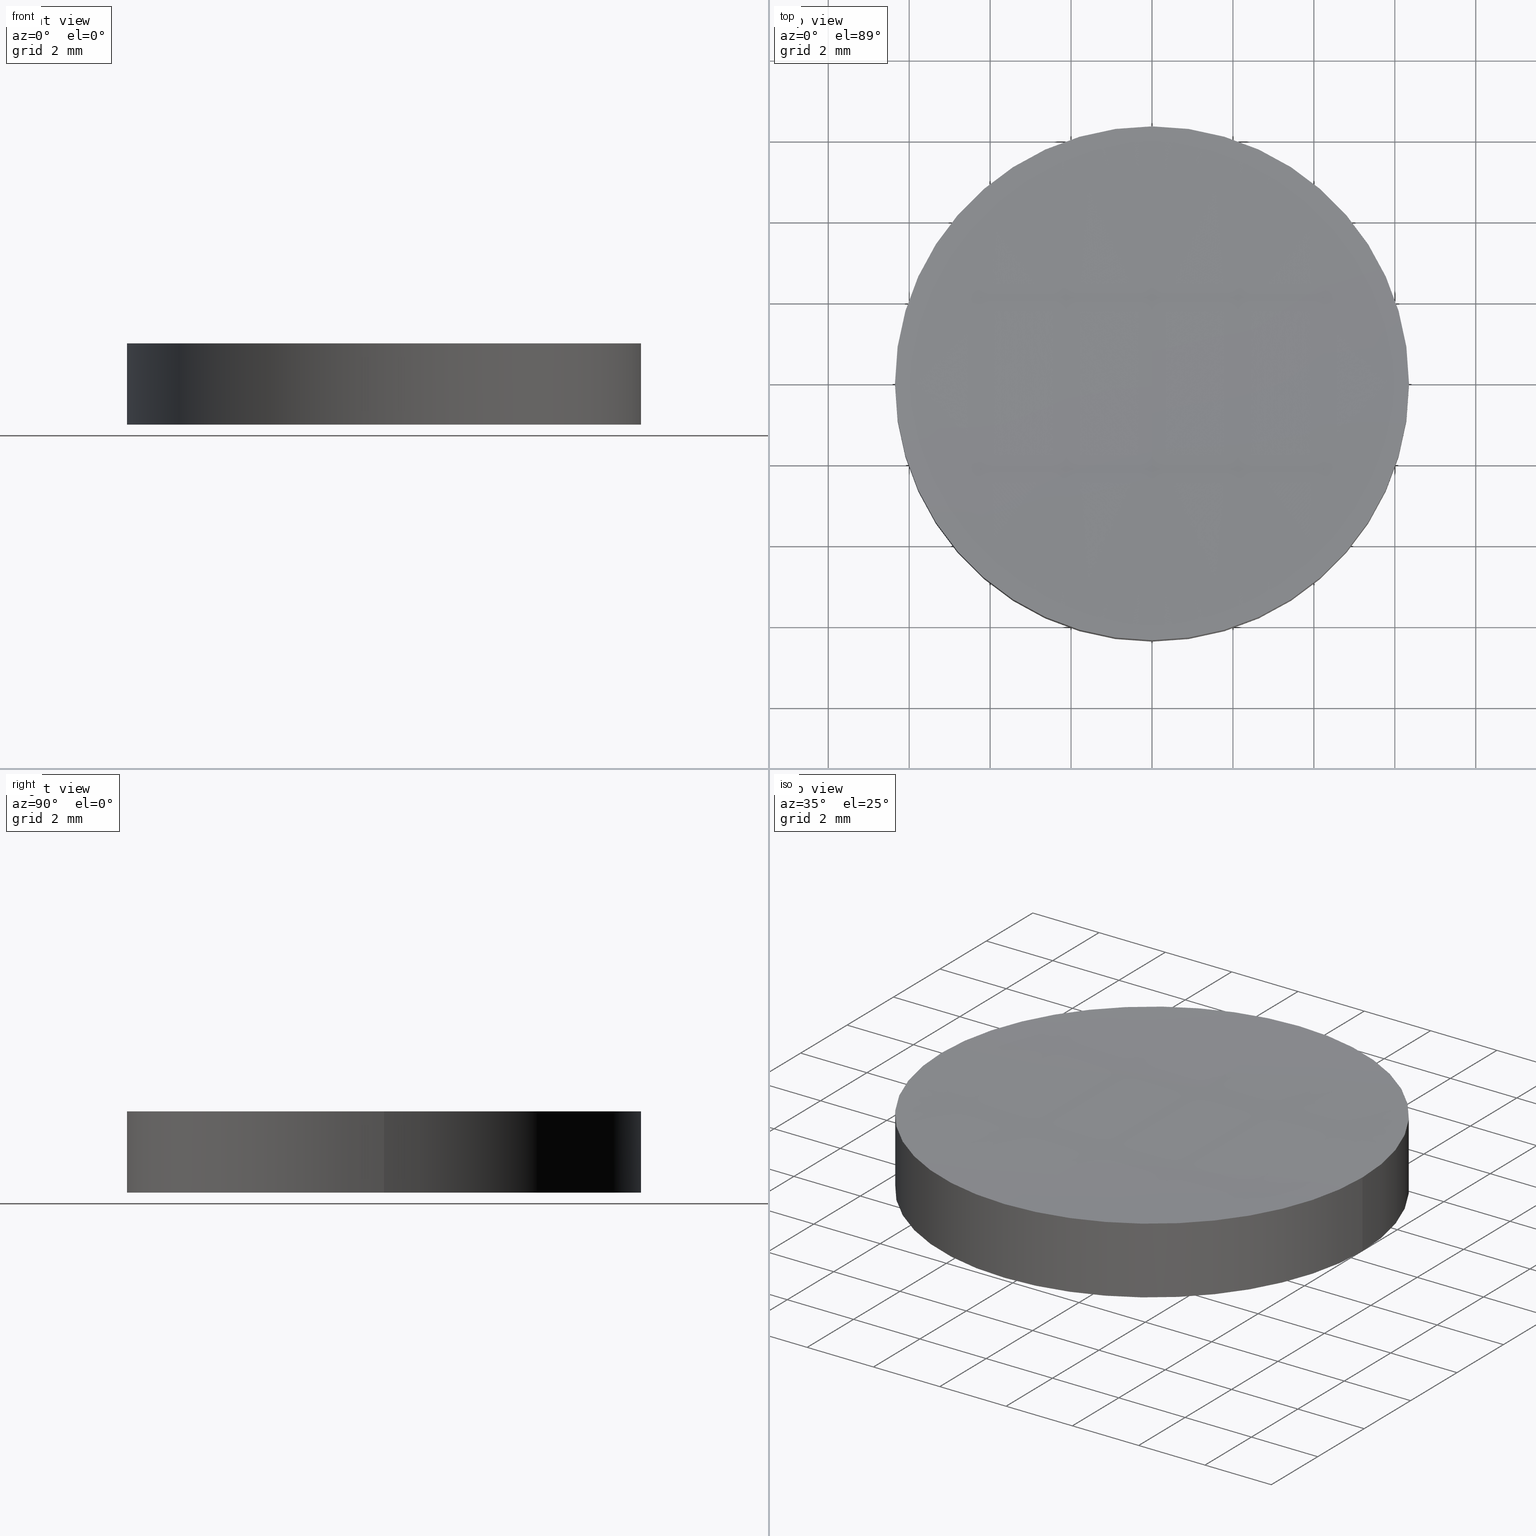
[diagram: canonical four-view strip — front | top / right | iso, engineering-drawing reading convention]
A machine part, canonical four-view strip (front | top / right | iso — engineering-drawing reading convention). The complete STEP part file that produces these views, byte-faithful:
ISO-10303-21;
HEADER;
FILE_DESCRIPTION (( 'STEP AP203' ),
    '1' );
FILE_NAME ('114-0120E BK7 bi-cv 12.7 F-125.STEP',
    '2019-01-20T23:55:02',
    ( '' ),
    ( '' ),
    'SwSTEP 2.0',
    'SolidWorks 2017',
    '' );
FILE_SCHEMA (( 'CONFIG_CONTROL_DESIGN' ));
ENDSEC;

DATA;
#1 = DIRECTION ( 'NONE',  ( 1.000000000000000000, 0.0000000000000000000, 0.0000000000000000000 ) ) ;
#2 = CARTESIAN_POINT ( 'NONE',  ( 2.498001805406600200E-016, 1.221245327087670000E-015, 1.855179156040269700 ) ) ;
#3 = ORIENTED_EDGE ( 'NONE', *, *, #128, .T. ) ;
#4 = CARTESIAN_POINT ( 'NONE',  ( -1.321838206735364000E-014, 6.426138242948876000, 1.858925038019987300 ) ) ;
#5 = ORIENTED_EDGE ( 'NONE', *, *, #58, .F. ) ;
#6 = CARTESIAN_POINT ( 'NONE',  ( 1.321838206735357900E-014, 6.426138242948616700, -0.1589250380199802600 ) ) ;
#7 = CC_DESIGN_PERSON_AND_ORGANIZATION_ASSIGNMENT ( #81, #205, ( #127 ) ) ;
#8 = AXIS2_PLACEMENT_3D ( 'NONE', #240, #260, #243 ) ;
#9 = ORIENTED_EDGE ( 'NONE', *, *, #71, .F. ) ;
#10 = CARTESIAN_POINT ( 'NONE',  ( -1.234998254251790300E-014, 2.143793272918376800, 1.646981777464952700 ) ) ;
#11 = CARTESIAN_POINT ( 'NONE',  ( -2.127824408194727300, -6.426138242948861800, 1.858925038019988400 ) ) ;
#12 = CARTESIAN_POINT ( 'NONE',  ( 2.131297716183690600, 2.143793272918378600, 1.646981777464952700 ) ) ;
#13 = LINE ( 'NONE', #23, #89 ) ;
#14 = CARTESIAN_POINT ( 'NONE',  ( 0.0000000000000000000, 0.0000000000000000000, 0.0000000000000000000 ) ) ;
#15 = APPLICATION_PROTOCOL_DEFINITION ( 'international standard', 'config_control_design', 1994, #248 ) ;
#16 = ADVANCED_FACE ( 'NONE', ( #37 ), #49, .T. ) ;
#17 = DIRECTION ( 'NONE',  ( -1.000000000000000000, -2.235275075987080100E-016, 4.190856211253810000E-016 ) ) ;
#18 = ORIENTED_EDGE ( 'NONE', *, *, #113, .T. ) ;
#19 = CALENDAR_DATE ( 2019, 21, 1 ) ;
#20 = ADVANCED_FACE ( 'NONE', ( #30 ), #255, .T. ) ;
#21 = CIRCLE ( 'NONE', #8, 6.349999999999999600 ) ;
#22 = DATE_AND_TIME ( #115, #226 ) ;
#23 = CARTESIAN_POINT ( 'NONE',  ( -6.349999999999999600, 1.998896044546239400E-015, -0.1551791560402660000 ) ) ;
#24 = CARTESIAN_POINT ( 'NONE',  ( -4.261951656520508000, -2.143793272918273800, 0.0006374862197401164400 ) ) ;
#25 = ORIENTED_EDGE ( 'NONE', *, *, #214, .T. ) ;
#26 = CARTESIAN_POINT ( 'NONE',  ( -1.036413357444679200E-014, -6.350000000000348700, 1.855179156040272800 ) ) ;
#27 = CIRCLE ( 'NONE', #48, 6.349999999999999600 ) ;
#28 = CARTESIAN_POINT ( 'NONE',  ( 4.261951656520520400, -2.143793272918276500, 0.0006374862197369046000 ) ) ;
#29 = CARTESIAN_POINT ( 'NONE',  ( 6.390674658232266700, 2.143793272918288900, -0.1040923423541564200 ) ) ;
#30 = FACE_OUTER_BOUND ( 'NONE', #195, .T. ) ;
#31 = EDGE_CURVE ( 'NONE', #225, #63, #181, .T. ) ;
#32 = CIRCLE ( 'NONE', #293, 6.349999999999999600 ) ;
#33 = CARTESIAN_POINT ( 'NONE',  ( 2.131297716183692300, -2.143793272918362200, 1.646981777464952200 ) ) ;
#34 = DIRECTION ( 'NONE',  ( 0.0000000000000000000, 0.0000000000000000000, 1.000000000000000000 ) ) ;
#35 = CC_DESIGN_PERSON_AND_ORGANIZATION_ASSIGNMENT ( #247, #179, ( #54 ) ) ;
#36 = CARTESIAN_POINT ( 'NONE',  ( 2.498001805406600200E-016, 1.221245327087670000E-015, 1.855179156040269700 ) ) ;
#37 = FACE_OUTER_BOUND ( 'NONE', #166, .T. ) ;
#38 = CALENDAR_DATE ( 2019, 21, 1 ) ;
#39 = CARTESIAN_POINT ( 'NONE',  ( 2.498001805406600200E-016, 1.221245327087670000E-015, -0.1551791560402660000 ) ) ;
#40 = FACE_OUTER_BOUND ( 'NONE', #169, .T. ) ;
#41 = EDGE_CURVE ( 'NONE', #138, #204, #13, .T. ) ;
#42 = SECURITY_CLASSIFICATION_LEVEL ( 'unclassified' ) ;
#43 = CARTESIAN_POINT ( 'NONE',  ( 2.498001805406600200E-016, 1.221245327087670000E-015, -0.1551791560402660000 ) ) ;
#44 = ORIENTED_EDGE ( 'NONE', *, *, #85, .T. ) ;
#45 = CARTESIAN_POINT ( 'NONE',  ( -6.390674658232237300, 2.143793272918292000, -0.1040923423541507000 ) ) ;
#46 = PRODUCT_RELATED_PRODUCT_CATEGORY ( 'detail', '', ( #54 ) ) ;
#47 = CARTESIAN_POINT ( 'NONE',  ( 4.255006089683576900, -6.426138242948602500, -0.2112204111180585900 ) ) ;
#48 = AXIS2_PLACEMENT_3D ( 'NONE', #84, #256, #109 ) ;
#49 = CYLINDRICAL_SURFACE ( 'NONE', #56, 6.349999999999999600 ) ;
#50 = DATE_AND_TIME ( #38, #222 ) ;
#51 = CARTESIAN_POINT ( 'NONE',  ( -2.127824408194727300, -6.426138242948600700, -0.1589250380199798700 ) ) ;
#52 = SHAPE_DEFINITION_REPRESENTATION ( #91, #228 ) ;
#53 = VERTEX_POINT ( 'NONE', #278 ) ;
#54 = PRODUCT ( '114-0120E BK7 bi-cv 12.7 F-125', '114-0120E BK7 bi-cv 12.7 F-125', '', ( #249 ) ) ;
#55 = CARTESIAN_POINT ( 'NONE',  ( -6.380259979336507600, 6.426138242948874300, 2.015779564826825100 ) ) ;
#56 = AXIS2_PLACEMENT_3D ( 'NONE', #162, #136, #62 ) ;
#57 = VERTEX_POINT ( 'NONE', #26 ) ;
#58 = EDGE_CURVE ( 'NONE', #53, #188, #141, .T. ) ;
#59 = CC_DESIGN_APPROVAL ( #145, ( #111 ) ) ;
#60 = DIRECTION ( 'NONE',  ( 2.235275075987079100E-016, 1.000000000000000000, 0.0000000000000000000 ) ) ;
#61 = CARTESIAN_POINT ( 'NONE',  ( 2.168404344971008600E-014, -2.143793272918361700, 1.646981777464952200 ) ) ;
#62 = DIRECTION ( 'NONE',  ( 1.000000000000000000, 0.0000000000000000000, 0.0000000000000000000 ) ) ;
#63 = VERTEX_POINT ( 'NONE', #209 ) ;
#64 = CARTESIAN_POINT ( 'NONE',  ( 6.380259979336506700, -6.426138242948603400, -0.3157795648268181300 ) ) ;
#65 = CARTESIAN_POINT ( 'NONE',  ( 6.349999999999999600, 1.221245327087670000E-015, 1.855179156040269700 ) ) ;
#66 = CC_DESIGN_PERSON_AND_ORGANIZATION_ASSIGNMENT ( #160, #82, ( #111 ) ) ;
#67 =( BOUNDED_SURFACE ( )  B_SPLINE_SURFACE ( 3, 3, ( 
 ( #287, #202, #197, #267 ),
 ( #291, #151, #12, #77 ),
 ( #180, #126, #33, #61 ),
 ( #224, #156, #229, #73 ) ),
 .UNSPECIFIED., .F., .F., .F. ) 
 B_SPLINE_SURFACE_WITH_KNOTS ( ( 4, 4 ),
 ( 4, 4 ),
 ( 0.0000000000000000000, 1.000000000000000000 ),
 ( 0.0000000000000000000, 1.000000000000000000 ),
 .UNSPECIFIED. ) 
 GEOMETRIC_REPRESENTATION_ITEM ( )  RATIONAL_B_SPLINE_SURFACE ( (
 ( 1.000000000000000000, 0.9997986278994979200, 0.9997986278994979200, 1.000000000000000000),
 ( 0.9991849998050256200, 0.9989837918228247100, 0.9989837918228247100, 0.9991849998050256200),
 ( 0.9991849998050256200, 0.9989837918228247100, 0.9989837918228247100, 0.9991849998050256200),
 ( 1.000000000000000000, 0.9997986278994979200, 0.9997986278994979200, 1.000000000000000000) ) ) 
 REPRESENTATION_ITEM ( '' )  SURFACE ( )  );
#68 = CARTESIAN_POINT ( 'NONE',  ( -4.255006089683576000, -6.426138242948861800, 1.911220411118066200 ) ) ;
#69 = ORIENTED_EDGE ( 'NONE', *, *, #128, .F. ) ;
#70 = PERSON_AND_ORGANIZATION ( #95, #167 ) ;
#71 = EDGE_CURVE ( 'NONE', #188, #57, #27, .T. ) ;
#72 = PERSON_AND_ORGANIZATION ( #95, #167 ) ;
#73 = CARTESIAN_POINT ( 'NONE',  ( 2.255140518769849200E-014, -6.426138242948860900, 1.858925038019987300 ) ) ;
#74 = DIRECTION ( 'NONE',  ( 1.000000000000000000, 0.0000000000000000000, 0.0000000000000000000 ) ) ;
#75 = ORIENTED_EDGE ( 'NONE', *, *, #286, .F. ) ;
#76 = PERSON_AND_ORGANIZATION ( #95, #167 ) ;
#77 = CARTESIAN_POINT ( 'NONE',  ( 1.994931997373327800E-014, 2.143793272918377300, 1.646981777464952700 ) ) ;
#78 = APPROVAL_STATUS ( 'not_yet_approved' ) ;
#79 = ADVANCED_FACE ( 'NONE', ( #272 ), #163, .F. ) ;
#80 = CIRCLE ( 'NONE', #152, 6.349999999999999600 ) ;
#81 = PERSON_AND_ORGANIZATION ( #95, #167 ) ;
#82 = PERSON_AND_ORGANIZATION_ROLE ( 'creator' ) ;
#83 = APPROVAL ( #273, 'UNSPECIFIED' ) ;
#84 = CARTESIAN_POINT ( 'NONE',  ( 2.498001805406600200E-016, 1.221245327087670000E-015, 1.855179156040269700 ) ) ;
#85 = EDGE_CURVE ( 'NONE', #98, #225, #279, .T. ) ;
#86 = CARTESIAN_POINT ( 'NONE',  ( -6.380259979336481800, -6.426138242948599800, -0.3157795648268124600 ) ) ;
#87 = DATE_AND_TIME ( #19, #155 ) ;
#88 = DIRECTION ( 'NONE',  ( 1.000000000000000000, 0.0000000000000000000, 0.0000000000000000000 ) ) ;
#89 = VECTOR ( 'NONE', #165, 1000.000000000000000 ) ;
#90 = COORDINATED_UNIVERSAL_TIME_OFFSET ( 2, 0, .AHEAD. ) ;
#91 = PRODUCT_DEFINITION_SHAPE ( 'NONE', 'NONE',  #127 ) ;
#92 = CARTESIAN_POINT ( 'NONE',  ( 1.234998254251787300E-014, 2.143793272918290200, 0.05301822253503708100 ) ) ;
#93 = CARTESIAN_POINT ( 'NONE',  ( 2.127824408194727700, -6.426138242948602500, -0.1589250380199811500 ) ) ;
#94 = CARTESIAN_POINT ( 'NONE',  ( -4.261951656520522200, 2.143793272918376000, 1.699362513780253700 ) ) ;
#95 = PERSON ( 'UNSPECIFIED', 'UNSPECIFIED', 'UNSPECIFIED', ('UNSPECIFIED'), ('UNSPECIFIED'), ('UNSPECIFIED') ) ;
#96 = FACE_OUTER_BOUND ( 'NONE', #283, .T. ) ;
#97 = APPROVAL_PERSON_ORGANIZATION ( #104, #133, #207 ) ;
#98 = VERTEX_POINT ( 'NONE', #242 ) ;
#99 =( BOUNDED_SURFACE ( )  B_SPLINE_SURFACE ( 3, 3, ( 
 ( #6, #282, #194, #168 ),
 ( #92, #218, #238, #29 ),
 ( #192, #244, #28, #144 ),
 ( #215, #93, #47, #64 ) ),
 .UNSPECIFIED., .F., .F., .F. ) 
 B_SPLINE_SURFACE_WITH_KNOTS ( ( 4, 4 ),
 ( 4, 4 ),
 ( 0.0000000000000000000, 1.000000000000000000 ),
 ( 0.0000000000000000000, 1.000000000000000000 ),
 .UNSPECIFIED. ) 
 GEOMETRIC_REPRESENTATION_ITEM ( )  RATIONAL_B_SPLINE_SURFACE ( (
 ( 1.000000000000000000, 0.9997986278994978000, 0.9997986278994978000, 1.000000000000000000),
 ( 0.9991849998050256200, 0.9989837918228246000, 0.9989837918228246000, 0.9991849998050256200),
 ( 0.9991849998050256200, 0.9989837918228246000, 0.9989837918228246000, 0.9991849998050256200),
 ( 1.000000000000000000, 0.9997986278994978000, 0.9997986278994978000, 1.000000000000000000) ) ) 
 REPRESENTATION_ITEM ( '' )  SURFACE ( )  );
#100 = DIRECTION ( 'NONE',  ( -0.0000000000000000000, -0.0000000000000000000, -1.000000000000000000 ) ) ;
#101 =( LENGTH_UNIT ( ) NAMED_UNIT ( * ) SI_UNIT ( .MILLI., .METRE. ) );
#102 = APPROVAL_DATE_TIME ( #289, #83 ) ;
#103 = CLOSED_SHELL ( 'NONE', ( #79, #230, #16, #107, #20, #149 ) ) ;
#104 = PERSON_AND_ORGANIZATION ( #95, #167 ) ;
#105 = AXIS2_PLACEMENT_3D ( 'NONE', #157, #199, #60 ) ;
#106 = DESIGN_CONTEXT ( 'detailed design', #203, 'design' ) ;
#107 = ADVANCED_FACE ( 'NONE', ( #40 ), #99, .F. ) ;
#108 = PERSON_AND_ORGANIZATION_ROLE ( 'classification_officer' ) ;
#109 = DIRECTION ( 'NONE',  ( 1.000000000000000000, 0.0000000000000000000, 0.0000000000000000000 ) ) ;
#110 = ORIENTED_EDGE ( 'NONE', *, *, #196, .T. ) ;
#111 = PRODUCT_DEFINITION_FORMATION_WITH_SPECIFIED_SOURCE ( 'ANY', '', #54, .NOT_KNOWN. ) ;
#112 = DIRECTION ( 'NONE',  ( 0.0000000000000000000, 0.0000000000000000000, 1.000000000000000000 ) ) ;
#113 = EDGE_CURVE ( 'NONE', #225, #188, #221, .T. ) ;
#114 = CARTESIAN_POINT ( 'NONE',  ( -2.131297716183690600, 2.143793272918290700, 0.05301822253503742100 ) ) ;
#115 = CALENDAR_DATE ( 2019, 21, 1 ) ;
#116 = CARTESIAN_POINT ( 'NONE',  ( 6.349999999999999600, 1.221245327087670000E-015, -0.1551791560402660000 ) ) ;
#117 = CARTESIAN_POINT ( 'NONE',  ( -2.127824408194730000, 6.426138242948874300, 1.858925038019988400 ) ) ;
#118 = UNCERTAINTY_MEASURE_WITH_UNIT (LENGTH_MEASURE( 1.000000000000000100E-005 ), #101, 'distance_accuracy_value', 'NONE');
#119 = AXIS2_PLACEMENT_3D ( 'NONE', #266, #17, #125 ) ;
#120 = CARTESIAN_POINT ( 'NONE',  ( -2.131297716183695000, 2.143793272918376400, 1.646981777464953800 ) ) ;
#121 = ORIENTED_EDGE ( 'NONE', *, *, #85, .F. ) ;
#122 = CARTESIAN_POINT ( 'NONE',  ( -2.131297716183694100, -2.143793272918362200, 1.646981777464953300 ) ) ;
#123 = CIRCLE ( 'NONE', #201, 6.349999999999999600 ) ;
#124 =( GEOMETRIC_REPRESENTATION_CONTEXT ( 3 ) GLOBAL_UNCERTAINTY_ASSIGNED_CONTEXT ( ( #118 ) ) GLOBAL_UNIT_ASSIGNED_CONTEXT ( ( #101, #129, #153 ) ) REPRESENTATION_CONTEXT ( 'NONE', 'WORKASPACE' ) );
#125 = DIRECTION ( 'NONE',  ( -2.235275075987079100E-016, 1.000000000000000000, 0.0000000000000000000 ) ) ;
#126 = CARTESIAN_POINT ( 'NONE',  ( 4.261951656520508900, -2.143793272918361700, 1.699362513780250200 ) ) ;
#127 = PRODUCT_DEFINITION ( 'UNKNOWN', '', #111, #106 ) ;
#128 = EDGE_CURVE ( 'NONE', #204, #53, #21, .T. ) ;
#129 =( NAMED_UNIT ( * ) PLANE_ANGLE_UNIT ( ) SI_UNIT ( $, .RADIAN. ) );
#130 = COORDINATED_UNIVERSAL_TIME_OFFSET ( 2, 0, .AHEAD. ) ;
#131 = ORIENTED_EDGE ( 'NONE', *, *, #41, .T. ) ;
#132 = DATE_TIME_ROLE ( 'classification_date' ) ;
#133 = APPROVAL ( #78, 'UNSPECIFIED' ) ;
#134 = DIRECTION ( 'NONE',  ( 0.0000000000000000000, 0.0000000000000000000, 1.000000000000000000 ) ) ;
#135 = AXIS2_PLACEMENT_3D ( 'NONE', #254, #112, #1 ) ;
#136 = DIRECTION ( 'NONE',  ( 0.0000000000000000000, 0.0000000000000000000, 1.000000000000000000 ) ) ;
#137 = CARTESIAN_POINT ( 'NONE',  ( -2.127824408194723700, 6.426138242948616700, -0.1589250380199799300 ) ) ;
#138 = VERTEX_POINT ( 'NONE', #140 ) ;
#139 = DIRECTION ( 'NONE',  ( 1.000000000000000000, 1.776356839400250500E-015, 0.0000000000000000000 ) ) ;
#140 = CARTESIAN_POINT ( 'NONE',  ( -6.349999999999999600, 1.998896044546239400E-015, -0.1551791560402660000 ) ) ;
#141 = CIRCLE ( 'NONE', #146, 6.349999999999999600 ) ;
#142 = APPROVAL_PERSON_ORGANIZATION ( #70, #145, #183 ) ;
#143 = CARTESIAN_POINT ( 'NONE',  ( 2.498001805406600200E-016, 1.221245327087670000E-015, -0.1551791560402660000 ) ) ;
#144 = CARTESIAN_POINT ( 'NONE',  ( 6.390674658232265800, -2.143793272918276900, -0.1040923423541559900 ) ) ;
#145 = APPROVAL ( #182, 'UNSPECIFIED' ) ;
#146 = AXIS2_PLACEMENT_3D ( 'NONE', #2, #213, #139 ) ;
#147 = CARTESIAN_POINT ( 'NONE',  ( -6.390674658232265800, -2.143793272918363500, 1.804092342354145700 ) ) ;
#148 = CALENDAR_DATE ( 2019, 21, 1 ) ;
#149 = ADVANCED_FACE ( 'NONE', ( #96 ), #288, .F. ) ;
#150 = COORDINATED_UNIVERSAL_TIME_OFFSET ( 2, 0, .AHEAD. ) ;
#151 = CARTESIAN_POINT ( 'NONE',  ( 4.261951656520507100, 2.143793272918379100, 1.699362513780250600 ) ) ;
#152 = AXIS2_PLACEMENT_3D ( 'NONE', #36, #100, #74 ) ;
#153 =( NAMED_UNIT ( * ) SI_UNIT ( $, .STERADIAN. ) SOLID_ANGLE_UNIT ( ) );
#154 = ORIENTED_EDGE ( 'NONE', *, *, #214, .F. ) ;
#155 = LOCAL_TIME ( 1, 55, 2.000000000000000000, #220 ) ;
#156 = CARTESIAN_POINT ( 'NONE',  ( 4.255006089683564400, -6.426138242948860000, 1.911220411118062600 ) ) ;
#157 = CARTESIAN_POINT ( 'NONE',  ( -4.263256414560599900E-014, 1.421085471520200100E-014, -130.0000000000000000 ) ) ;
#158 = CIRCLE ( 'NONE', #105, 130.0000000000000000 ) ;
#159 = AXIS2_PLACEMENT_3D ( 'NONE', #14, #34, #268 ) ;
#160 = PERSON_AND_ORGANIZATION ( #95, #167 ) ;
#161 = PERSON_AND_ORGANIZATION_ROLE ( 'design_supplier' ) ;
#162 = CARTESIAN_POINT ( 'NONE',  ( 2.498001805406600200E-016, 1.221245327087670000E-015, -0.1551791560402660000 ) ) ;
#163 =( BOUNDED_SURFACE ( )  B_SPLINE_SURFACE ( 3, 3, ( 
 ( #186, #210, #137, #234 ),
 ( #45, #187, #114, #275 ),
 ( #295, #24, #185, #236 ),
 ( #86, #281, #51, #217 ) ),
 .UNSPECIFIED., .F., .F., .T. ) 
 B_SPLINE_SURFACE_WITH_KNOTS ( ( 4, 4 ),
 ( 4, 4 ),
 ( 0.0000000000000000000, 1.000000000000000000 ),
 ( 0.0000000000000000000, 1.000000000000000000 ),
 .UNSPECIFIED. ) 
 GEOMETRIC_REPRESENTATION_ITEM ( )  RATIONAL_B_SPLINE_SURFACE ( (
 ( 1.000000000000000000, 0.9997986278994979200, 0.9997986278994979200, 1.000000000000000000),
 ( 0.9991849998050256200, 0.9989837918228247100, 0.9989837918228247100, 0.9991849998050256200),
 ( 0.9991849998050256200, 0.9989837918228247100, 0.9989837918228247100, 0.9991849998050256200),
 ( 1.000000000000000000, 0.9997986278994979200, 0.9997986278994979200, 1.000000000000000000) ) ) 
 REPRESENTATION_ITEM ( '' )  SURFACE ( )  );
#164 = FACE_OUTER_BOUND ( 'NONE', #269, .T. ) ;
#165 = DIRECTION ( 'NONE',  ( 0.0000000000000000000, 0.0000000000000000000, 1.000000000000000000 ) ) ;
#166 = EDGE_LOOP ( 'NONE', ( #219, #25, #131, #3, #184, #250 ) ) ;
#167 = ORGANIZATION ( 'UNSPECIFIED', 'UNSPECIFIED', '' ) ;
#168 = CARTESIAN_POINT ( 'NONE',  ( 6.380259979336509300, 6.426138242948614900, -0.3157795648268181300 ) ) ;
#169 = EDGE_LOOP ( 'NONE', ( #276, #178, #121 ) ) ;
#170 = DIRECTION ( 'NONE',  ( 0.0000000000000000000, 0.0000000000000000000, 1.000000000000000000 ) ) ;
#171 = LOCAL_TIME ( 1, 55, 2.000000000000000000, #265 ) ;
#172 = CARTESIAN_POINT ( 'NONE',  ( -4.261951656520521300, -2.143793272918362600, 1.699362513780253300 ) ) ;
#173 = EDGE_LOOP ( 'NONE', ( #154, #292, #262 ) ) ;
#174 = CARTESIAN_POINT ( 'NONE',  ( -6.380259979336504900, -6.426138242948862700, 2.015779564826825100 ) ) ;
#175 = CARTESIAN_POINT ( 'NONE',  ( -1.034554473749144000E-014, -6.426138242948860900, 1.858925038019987300 ) ) ;
#176 = CARTESIAN_POINT ( 'NONE',  ( 6.349999999999999600, 1.221245327087670000E-015, -0.1551791560402660000 ) ) ;
#177 = DIRECTION ( 'NONE',  ( 1.000000000000000000, 0.0000000000000000000, 0.0000000000000000000 ) ) ;
#178 = ORIENTED_EDGE ( 'NONE', *, *, #31, .F. ) ;
#179 = PERSON_AND_ORGANIZATION_ROLE ( 'design_owner' ) ;
#180 = CARTESIAN_POINT ( 'NONE',  ( 6.390674658232239100, -2.143793272918360400, 1.804092342354140000 ) ) ;
#181 = CIRCLE ( 'NONE', #237, 6.349999999999999600 ) ;
#182 = APPROVAL_STATUS ( 'not_yet_approved' ) ;
#183 = APPROVAL_ROLE ( '' ) ;
#184 = ORIENTED_EDGE ( 'NONE', *, *, #58, .T. ) ;
#185 = CARTESIAN_POINT ( 'NONE',  ( -2.131297716183692300, -2.143793272918274300, 0.05301822253503794800 ) ) ;
#186 = CARTESIAN_POINT ( 'NONE',  ( -6.380259979336478300, 6.426138242948618500, -0.3157795648268124600 ) ) ;
#187 = CARTESIAN_POINT ( 'NONE',  ( -4.261951656520506200, 2.143793272918291100, 0.0006374862197396558800 ) ) ;
#188 = VERTEX_POINT ( 'NONE', #65 ) ;
#189 = DIRECTION ( 'NONE',  ( 0.0000000000000000000, 0.0000000000000000000, 1.000000000000000000 ) ) ;
#190 = EDGE_CURVE ( 'NONE', #63, #98, #158, .T. ) ;
#191 = CC_DESIGN_PERSON_AND_ORGANIZATION_ASSIGNMENT ( #72, #108, ( #223 ) ) ;
#192 = CARTESIAN_POINT ( 'NONE',  ( 1.139158900831328000E-014, -2.143793272918275600, 0.05301822253503751100 ) ) ;
#193 = ORIENTED_EDGE ( 'NONE', *, *, #196, .F. ) ;
#194 = CARTESIAN_POINT ( 'NONE',  ( 4.255006089683580400, 6.426138242948614900, -0.2112204111180586200 ) ) ;
#195 = EDGE_LOOP ( 'NONE', ( #235, #257, #44, #18, #231, #110 ) ) ;
#196 = EDGE_CURVE ( 'NONE', #57, #204, #80, .T. ) ;
#197 = CARTESIAN_POINT ( 'NONE',  ( 2.127824408194723300, 6.426138242948876000, 1.858925038019986900 ) ) ;
#198 = CIRCLE ( 'NONE', #119, 130.0000000000000000 ) ;
#199 = DIRECTION ( 'NONE',  ( 1.000000000000000000, -2.235275075987080100E-016, -4.190856211253810000E-016 ) ) ;
#200 = CARTESIAN_POINT ( 'NONE',  ( -6.349999999999999600, 1.998896044546239400E-015, 1.855179156040269700 ) ) ;
#201 = AXIS2_PLACEMENT_3D ( 'NONE', #271, #252, #177 ) ;
#202 = CARTESIAN_POINT ( 'NONE',  ( 4.255006089683560900, 6.426138242948876000, 1.911220411118062600 ) ) ;
#203 = APPLICATION_CONTEXT ( 'configuration controlled 3d designs of mechanical parts and assemblies' ) ;
#204 = VERTEX_POINT ( 'NONE', #200 ) ;
#205 = PERSON_AND_ORGANIZATION_ROLE ( 'creator' ) ;
#206 = EDGE_CURVE ( 'NONE', #138, #98, #32, .T. ) ;
#207 = APPROVAL_ROLE ( '' ) ;
#208 = DATE_TIME_ROLE ( 'creation_date' ) ;
#209 = CARTESIAN_POINT ( 'NONE',  ( 1.320293292095049300E-014, 6.350000000000090200, -0.1551791560402676400 ) ) ;
#210 = CARTESIAN_POINT ( 'NONE',  ( -4.255006089683560900, 6.426138242948616700, -0.2112204111180554200 ) ) ;
#211 = CC_DESIGN_APPROVAL ( #83, ( #223 ) ) ;
#212 = DATE_AND_TIME ( #270, #171 ) ;
#213 = DIRECTION ( 'NONE',  ( -0.0000000000000000000, -0.0000000000000000000, -1.000000000000000000 ) ) ;
#214 = EDGE_CURVE ( 'NONE', #63, #138, #123, .T. ) ;
#215 = CARTESIAN_POINT ( 'NONE',  ( 1.034554473749150200E-014, -6.426138242948601600, -0.1589250380199802600 ) ) ;
#216 = VECTOR ( 'NONE', #170, 1000.000000000000000 ) ;
#217 = CARTESIAN_POINT ( 'NONE',  ( -2.255140518769849200E-014, -6.426138242948601600, -0.1589250380199802000 ) ) ;
#218 = CARTESIAN_POINT ( 'NONE',  ( 2.131297716183695000, 2.143793272918288900, 0.05301822253503619300 ) ) ;
#219 = ORIENTED_EDGE ( 'NONE', *, *, #31, .T. ) ;
#220 = COORDINATED_UNIVERSAL_TIME_OFFSET ( 2, 0, .AHEAD. ) ;
#221 = LINE ( 'NONE', #116, #216 ) ;
#222 = LOCAL_TIME ( 1, 55, 2.000000000000000000, #90 ) ;
#223 = SECURITY_CLASSIFICATION ( '', '', #42 ) ;
#224 = CARTESIAN_POINT ( 'NONE',  ( 6.380259979336480900, -6.426138242948859200, 2.015779564826819300 ) ) ;
#225 = VERTEX_POINT ( 'NONE', #176 ) ;
#226 = LOCAL_TIME ( 1, 55, 2.000000000000000000, #150 ) ;
#227 = DIRECTION ( 'NONE',  ( 1.000000000000000000, 0.0000000000000000000, 0.0000000000000000000 ) ) ;
#228 = ADVANCED_BREP_SHAPE_REPRESENTATION ( '114-0120E BK7 bi-cv 12.7 F-125', ( #264, #159 ), #124 ) ;
#229 = CARTESIAN_POINT ( 'NONE',  ( 2.127824408194726800, -6.426138242948860000, 1.858925038019986900 ) ) ;
#230 = ADVANCED_FACE ( 'NONE', ( #164 ), #67, .F. ) ;
#231 = ORIENTED_EDGE ( 'NONE', *, *, #71, .T. ) ;
#232 = APPLICATION_PROTOCOL_DEFINITION ( 'international standard', 'config_control_design', 1994, #203 ) ;
#233 = CC_DESIGN_APPROVAL ( #133, ( #127 ) ) ;
#234 = CARTESIAN_POINT ( 'NONE',  ( -1.908195823574487800E-014, 6.426138242948616700, -0.1589250380199802600 ) ) ;
#235 = ORIENTED_EDGE ( 'NONE', *, *, #41, .F. ) ;
#236 = CARTESIAN_POINT ( 'NONE',  ( -2.168404344971008600E-014, -2.143793272918275200, 0.05301822253503759400 ) ) ;
#237 = AXIS2_PLACEMENT_3D ( 'NONE', #43, #134, #259 ) ;
#238 = CARTESIAN_POINT ( 'NONE',  ( 4.261951656520521300, 2.143793272918288500, 0.0006374862197364708100 ) ) ;
#239 = ORIENTED_EDGE ( 'NONE', *, *, #286, .T. ) ;
#240 = CARTESIAN_POINT ( 'NONE',  ( 2.498001805406600200E-016, 1.221245327087670000E-015, 1.855179156040269700 ) ) ;
#241 = CC_DESIGN_SECURITY_CLASSIFICATION ( #223, ( #111 ) ) ;
#242 = CARTESIAN_POINT ( 'NONE',  ( 1.036413357444686600E-014, -6.350000000000074300, -0.1551791560402676400 ) ) ;
#243 = DIRECTION ( 'NONE',  ( 1.000000000000000000, -8.881784197001252300E-016, 0.0000000000000000000 ) ) ;
#244 = CARTESIAN_POINT ( 'NONE',  ( 2.131297716183694100, -2.143793272918276000, 0.05301822253503663000 ) ) ;
#245 = CARTESIAN_POINT ( 'NONE',  ( -4.255006089683578600, 6.426138242948874300, 1.911220411118066200 ) ) ;
#246 = LOCAL_TIME ( 1, 55, 2.000000000000000000, #130 ) ;
#247 = PERSON_AND_ORGANIZATION ( #95, #167 ) ;
#248 = APPLICATION_CONTEXT ( 'configuration controlled 3d designs of mechanical parts and assemblies' ) ;
#249 = MECHANICAL_CONTEXT ( 'NONE', #248, 'mechanical' ) ;
#250 = ORIENTED_EDGE ( 'NONE', *, *, #113, .F. ) ;
#251 = DIRECTION ( 'NONE',  ( 0.0000000000000000000, 0.0000000000000000000, 1.000000000000000000 ) ) ;
#252 = DIRECTION ( 'NONE',  ( 0.0000000000000000000, 0.0000000000000000000, 1.000000000000000000 ) ) ;
#253 = APPROVAL_ROLE ( '' ) ;
#254 = CARTESIAN_POINT ( 'NONE',  ( 2.498001805406600200E-016, 1.221245327087670000E-015, -0.1551791560402660000 ) ) ;
#255 = CYLINDRICAL_SURFACE ( 'NONE', #135, 6.349999999999999600 ) ;
#256 = DIRECTION ( 'NONE',  ( -0.0000000000000000000, -0.0000000000000000000, -1.000000000000000000 ) ) ;
#257 = ORIENTED_EDGE ( 'NONE', *, *, #206, .T. ) ;
#258 = APPROVAL_PERSON_ORGANIZATION ( #76, #83, #253 ) ;
#259 = DIRECTION ( 'NONE',  ( 1.000000000000000000, 0.0000000000000000000, 0.0000000000000000000 ) ) ;
#260 = DIRECTION ( 'NONE',  ( -0.0000000000000000000, -0.0000000000000000000, -1.000000000000000000 ) ) ;
#261 = PERSON_AND_ORGANIZATION ( #95, #167 ) ;
#262 = ORIENTED_EDGE ( 'NONE', *, *, #206, .F. ) ;
#263 = CARTESIAN_POINT ( 'NONE',  ( -1.139158900831326300E-014, -2.143793272918362200, 1.646981777464952200 ) ) ;
#264 = MANIFOLD_SOLID_BREP ( 'Imported1', #103 ) ;
#265 = COORDINATED_UNIVERSAL_TIME_OFFSET ( 2, 0, .AHEAD. ) ;
#266 = CARTESIAN_POINT ( 'NONE',  ( 4.263256414560599900E-014, 1.421085471520200100E-014, 131.6999999999999900 ) ) ;
#267 = CARTESIAN_POINT ( 'NONE',  ( 1.908195823574487800E-014, 6.426138242948876000, 1.858925038019987300 ) ) ;
#268 = DIRECTION ( 'NONE',  ( 1.000000000000000000, 0.0000000000000000000, 0.0000000000000000000 ) ) ;
#269 = EDGE_LOOP ( 'NONE', ( #5, #239, #9 ) ) ;
#270 = CALENDAR_DATE ( 2019, 21, 1 ) ;
#271 = CARTESIAN_POINT ( 'NONE',  ( 2.498001805406600200E-016, 1.221245327087670000E-015, -0.1551791560402660000 ) ) ;
#272 = FACE_OUTER_BOUND ( 'NONE', #173, .T. ) ;
#273 = APPROVAL_STATUS ( 'not_yet_approved' ) ;
#274 = CC_DESIGN_DATE_AND_TIME_ASSIGNMENT ( #87, #132, ( #223 ) ) ;
#275 = CARTESIAN_POINT ( 'NONE',  ( -1.994931997373327800E-014, 2.143793272918290700, 0.05301822253503705300 ) ) ;
#276 = ORIENTED_EDGE ( 'NONE', *, *, #190, .F. ) ;
#277 = APPROVAL_DATE_TIME ( #50, #145 ) ;
#278 = CARTESIAN_POINT ( 'NONE',  ( -1.320293292095054300E-014, 6.350000000000362000, 1.855179156040272800 ) ) ;
#279 = CIRCLE ( 'NONE', #290, 6.349999999999999600 ) ;
#280 = APPROVAL_DATE_TIME ( #22, #133 ) ;
#281 = CARTESIAN_POINT ( 'NONE',  ( -4.255006089683564400, -6.426138242948600700, -0.2112204111180554200 ) ) ;
#282 = CARTESIAN_POINT ( 'NONE',  ( 2.127824408194730400, 6.426138242948614900, -0.1589250380199811500 ) ) ;
#283 = EDGE_LOOP ( 'NONE', ( #75, #69, #193 ) ) ;
#284 = CC_DESIGN_PERSON_AND_ORGANIZATION_ASSIGNMENT ( #261, #161, ( #111 ) ) ;
#285 = CARTESIAN_POINT ( 'NONE',  ( -6.390674658232266700, 2.143793272918375500, 1.804092342354146200 ) ) ;
#286 = EDGE_CURVE ( 'NONE', #53, #57, #198, .T. ) ;
#287 = CARTESIAN_POINT ( 'NONE',  ( 6.380259979336477400, 6.426138242948877800, 2.015779564826819300 ) ) ;
#288 =( BOUNDED_SURFACE ( )  B_SPLINE_SURFACE ( 3, 3, ( 
 ( #4, #117, #245, #55 ),
 ( #10, #120, #94, #285 ),
 ( #263, #122, #172, #147 ),
 ( #175, #11, #68, #174 ) ),
 .UNSPECIFIED., .F., .F., .F. ) 
 B_SPLINE_SURFACE_WITH_KNOTS ( ( 4, 4 ),
 ( 4, 4 ),
 ( 0.0000000000000000000, 1.000000000000000000 ),
 ( 0.0000000000000000000, 1.000000000000000000 ),
 .UNSPECIFIED. ) 
 GEOMETRIC_REPRESENTATION_ITEM ( )  RATIONAL_B_SPLINE_SURFACE ( (
 ( 1.000000000000000000, 0.9997986278994978000, 0.9997986278994978000, 1.000000000000000000),
 ( 0.9991849998050256200, 0.9989837918228246000, 0.9989837918228246000, 0.9991849998050256200),
 ( 0.9991849998050256200, 0.9989837918228246000, 0.9989837918228246000, 0.9991849998050256200),
 ( 1.000000000000000000, 0.9997986278994978000, 0.9997986278994978000, 1.000000000000000000) ) ) 
 REPRESENTATION_ITEM ( '' )  SURFACE ( )  );
#289 = DATE_AND_TIME ( #148, #246 ) ;
#290 = AXIS2_PLACEMENT_3D ( 'NONE', #143, #189, #88 ) ;
#291 = CARTESIAN_POINT ( 'NONE',  ( 6.390674658232237300, 2.143793272918378600, 1.804092342354140400 ) ) ;
#292 = ORIENTED_EDGE ( 'NONE', *, *, #190, .T. ) ;
#293 = AXIS2_PLACEMENT_3D ( 'NONE', #39, #251, #227 ) ;
#294 = CC_DESIGN_DATE_AND_TIME_ASSIGNMENT ( #212, #208, ( #127 ) ) ;
#295 = CARTESIAN_POINT ( 'NONE',  ( -6.390674658232239100, -2.143793272918273800, -0.1040923423541502700 ) ) ;
ENDSEC;
END-ISO-10303-21;
